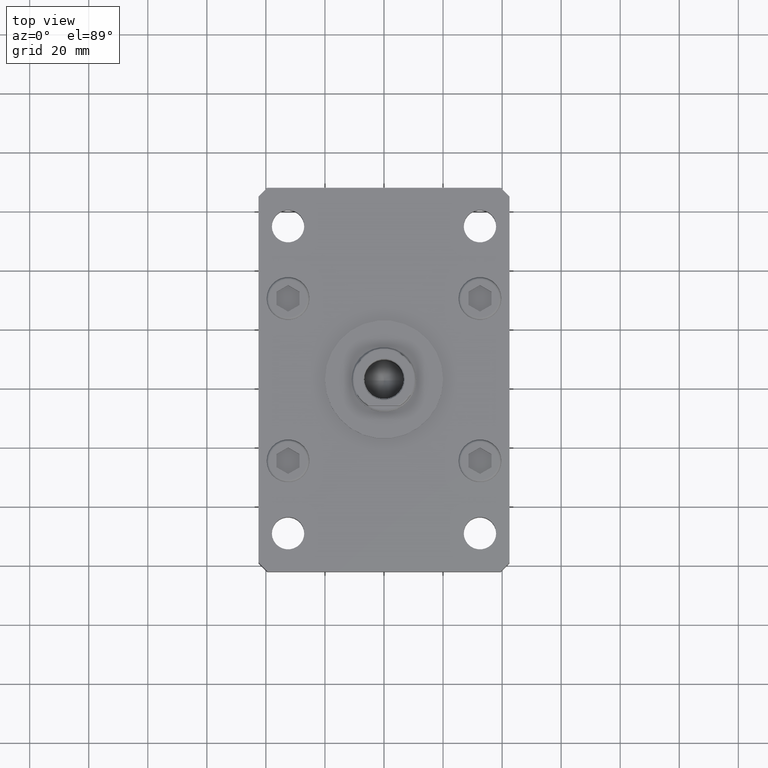
[diagram: clean part render]
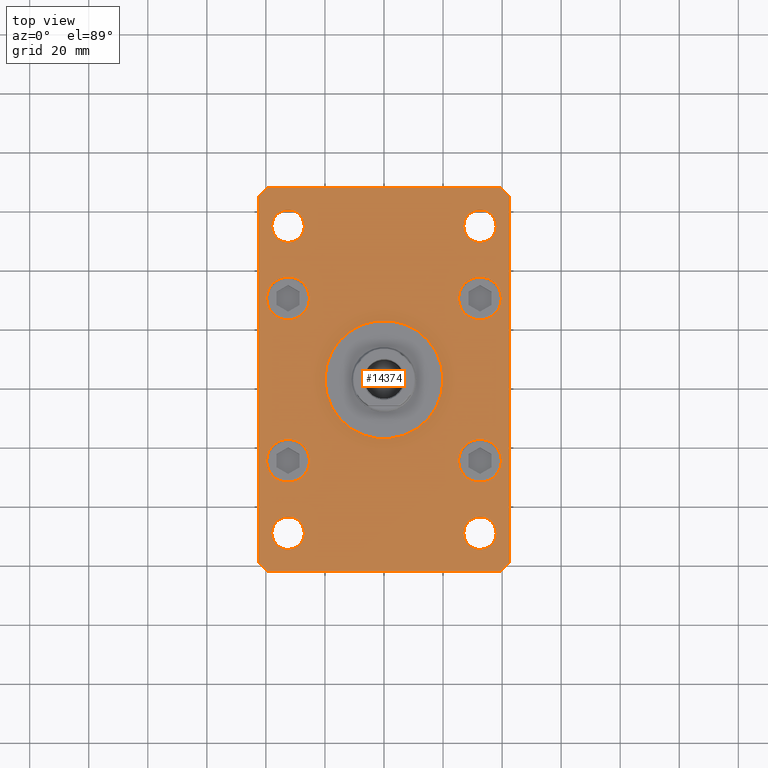
[diagram: same view with one face highlighted and labeled with its STEP entity id]
A machine part, top view. The second image highlights one B-rep face of the part: STEP entity #14374.
In plain terms, the highlighted planar face has unit normal (0, 0, 1).
Its self-contained STEP definition (entity closure, byte-faithful):
#1 = CARTESIAN_POINT ( 'NONE',  ( -25.25000000000000000, -27.50000000000000000, 15.00000000000000000 ) ) ;
#74 = EDGE_CURVE ( 'NONE', #50099, #24078, #24060, .T. ) ;
#400 = DIRECTION ( 'NONE',  ( 1.000000000000000000, 0.000000000000000000, 0.000000000000000000 ) ) ;
#773 = EDGE_CURVE ( 'NONE', #39790, #35642, #27593, .T. ) ;
#943 = DIRECTION ( 'NONE',  ( 0.000000000000000000, 0.000000000000000000, 1.000000000000000000 ) ) ;
#976 = CIRCLE ( 'NONE', #39068, 20.00000000000000000 ) ;
#1141 = DIRECTION ( 'NONE',  ( 0.000000000000000000, 0.000000000000000000, 1.000000000000000000 ) ) ;
#1316 = CARTESIAN_POINT ( 'NONE',  ( -32.49999999999997868, -52.00000000000000711, 15.00000000000000000 ) ) ;
#1597 = DIRECTION ( 'NONE',  ( 1.000000000000000000, 0.000000000000000000, 0.000000000000000000 ) ) ;
#1956 = VECTOR ( 'NONE', #7442, 1000.000000000000000 ) ;
#2084 = VERTEX_POINT ( 'NONE', #18551 ) ;
#2296 = EDGE_CURVE ( 'NONE', #51710, #29341, #46662, .T. ) ;
#2302 = CARTESIAN_POINT ( 'NONE',  ( 0.000000000000000000, 0.000000000000000000, 15.00000000000000000 ) ) ;
#2462 = EDGE_CURVE ( 'NONE', #46837, #9170, #15222, .T. ) ;
#2582 = CIRCLE ( 'NONE', #48449, 5.499999999999994671 ) ;
#2782 = EDGE_CURVE ( 'NONE', #10944, #2084, #13841, .T. ) ;
#2790 = EDGE_CURVE ( 'NONE', #33543, #24824, #40625, .T. ) ;
#3080 = EDGE_CURVE ( 'NONE', #26522, #40787, #27673, .T. ) ;
#3383 = AXIS2_PLACEMENT_3D ( 'NONE', #12279, #4935, #13083 ) ;
#3701 = LINE ( 'NONE', #8049, #11386 ) ;
#3835 = CARTESIAN_POINT ( 'NONE',  ( 20.00000000000000000, 2.449293598294706513E-15, 15.00000000000000000 ) ) ;
#3848 = DIRECTION ( 'NONE',  ( 0.000000000000000000, 0.000000000000000000, 1.000000000000000000 ) ) ;
#4233 = CARTESIAN_POINT ( 'NONE',  ( 39.75000000000000000, -27.50000000000000000, 15.00000000000000000 ) ) ;
#4306 = CIRCLE ( 'NONE', #34648, 5.499999999999998224 ) ;
#4744 = VERTEX_POINT ( 'NONE', #22831 ) ;
#4935 = DIRECTION ( 'NONE',  ( 0.000000000000000000, 0.000000000000000000, 1.000000000000000000 ) ) ;
#4961 = CARTESIAN_POINT ( 'NONE',  ( -39.50000000000003553, 65.00000000000000000, 15.00000000000000000 ) ) ;
#5014 = CARTESIAN_POINT ( 'NONE',  ( -32.50000000000000000, -27.50000000000000000, 15.00000000000000000 ) ) ;
#5171 = VECTOR ( 'NONE', #9793, 1000.000000000000114 ) ;
#5528 = VECTOR ( 'NONE', #24757, 1000.000000000000000 ) ;
#5708 = CARTESIAN_POINT ( 'NONE',  ( -42.50000000000002132, 62.00000000000000711, 15.00000000000000000 ) ) ;
#5821 = DIRECTION ( 'NONE',  ( 0.000000000000000000, 0.000000000000000000, 1.000000000000000000 ) ) ;
#5976 = ORIENTED_EDGE ( 'NONE', *, *, #7588, .F. ) ;
#6183 = DIRECTION ( 'NONE',  ( 1.000000000000000000, 0.000000000000000000, 0.000000000000000000 ) ) ;
#6316 = VECTOR ( 'NONE', #6583, 1000.000000000000000 ) ;
#6583 = DIRECTION ( 'NONE',  ( -1.000000000000000000, -3.513364001978340512E-16, 0.000000000000000000 ) ) ;
#7239 = CARTESIAN_POINT ( 'NONE',  ( 39.50000000000002842, 65.00000000000002842, 15.00000000000000000 ) ) ;
#7442 = DIRECTION ( 'NONE',  ( 1.000000000000000000, 1.405345600791337191E-15, 0.000000000000000000 ) ) ;
#7588 = EDGE_CURVE ( 'NONE', #35642, #39790, #2582, .T. ) ;
#8049 = CARTESIAN_POINT ( 'NONE',  ( 42.50000000000000000, -61.99999999999988631, 15.00000000000000000 ) ) ;
#8198 = PLANE ( 'NONE',  #28737 ) ;
#8332 = ORIENTED_EDGE ( 'NONE', *, *, #44523, .F. ) ;
#8793 = ORIENTED_EDGE ( 'NONE', *, *, #2462, .T. ) ;
#8826 = DIRECTION ( 'NONE',  ( 0.000000000000000000, 0.000000000000000000, 1.000000000000000000 ) ) ;
#9170 = VERTEX_POINT ( 'NONE', #21733 ) ;
#9239 = VERTEX_POINT ( 'NONE', #30413 ) ;
#9414 = ORIENTED_EDGE ( 'NONE', *, *, #2790, .F. ) ;
#9729 = AXIS2_PLACEMENT_3D ( 'NONE', #1316, #18138, #17874 ) ;
#9793 = DIRECTION ( 'NONE',  ( 0.7071067811865459074, 0.7071067811865491270, 0.000000000000000000 ) ) ;
#10060 = LINE ( 'NONE', #14394, #5171 ) ;
#10516 = CARTESIAN_POINT ( 'NONE',  ( 32.50000000000000000, 51.99999999999999289, 15.00000000000000000 ) ) ;
#10584 = CIRCLE ( 'NONE', #40001, 7.249999999999999112 ) ;
#10839 = EDGE_CURVE ( 'NONE', #29341, #51710, #32955, .T. ) ;
#10944 = VERTEX_POINT ( 'NONE', #20487 ) ;
#11194 = VECTOR ( 'NONE', #23601, 1000.000000000000000 ) ;
#11230 = CIRCLE ( 'NONE', #3383, 20.00000000000000000 ) ;
#11386 = VECTOR ( 'NONE', #41104, 1000.000000000000000 ) ;
#12017 = ORIENTED_EDGE ( 'NONE', *, *, #31312, .T. ) ;
#12205 = DIRECTION ( 'NONE',  ( -0.7071067811865417996, 0.7071067811865532349, 0.000000000000000000 ) ) ;
#12256 = FACE_BOUND ( 'NONE', #18081, .T. ) ;
#12279 = CARTESIAN_POINT ( 'NONE',  ( 0.000000000000000000, 0.000000000000000000, 15.00000000000000000 ) ) ;
#12474 = LINE ( 'NONE', #41190, #48647 ) ;
#12523 = FACE_BOUND ( 'NONE', #34710, .T. ) ;
#12532 = CARTESIAN_POINT ( 'NONE',  ( 32.50000000000000000, 27.50000000000000000, 15.00000000000000000 ) ) ;
#12789 = DIRECTION ( 'NONE',  ( 1.000000000000000000, 0.000000000000000000, 0.000000000000000000 ) ) ;
#13022 = ORIENTED_EDGE ( 'NONE', *, *, #36900, .F. ) ;
#13083 = DIRECTION ( 'NONE',  ( 1.000000000000000000, 0.000000000000000000, 0.000000000000000000 ) ) ;
#13348 = CARTESIAN_POINT ( 'NONE',  ( -37.99999999999997868, -52.00000000000000711, 15.00000000000000000 ) ) ;
#13841 = CIRCLE ( 'NONE', #17254, 5.499999999999991118 ) ;
#13941 = DIRECTION ( 'NONE',  ( 1.000000000000000000, 0.000000000000000000, 0.000000000000000000 ) ) ;
#13966 = DIRECTION ( 'NONE',  ( 1.000000000000000000, 0.000000000000000000, 0.000000000000000000 ) ) ;
#14164 = DIRECTION ( 'NONE',  ( 1.000000000000000000, 0.000000000000000000, 0.000000000000000000 ) ) ;
#14374 = ADVANCED_FACE ( 'NONE', ( #48868, #12256, #36921, #28781, #12523, #28252, #52679, #40713, #49653, #20389 ), #8198, .T. ) ;
#14394 = CARTESIAN_POINT ( 'NONE',  ( 39.50000000000001421, -64.99999999999988631, 15.00000000000000000 ) ) ;
#14736 = EDGE_CURVE ( 'NONE', #34001, #17820, #10584, .T. ) ;
#15011 = CIRCLE ( 'NONE', #45281, 7.249999999999999112 ) ;
#15077 = EDGE_CURVE ( 'NONE', #24824, #33543, #20084, .T. ) ;
#15222 = LINE ( 'NONE', #22819, #11194 ) ;
#15231 = ORIENTED_EDGE ( 'NONE', *, *, #74, .F. ) ;
#15249 = EDGE_CURVE ( 'NONE', #9239, #28258, #12474, .T. ) ;
#15574 = CARTESIAN_POINT ( 'NONE',  ( -39.50000000000000000, -65.00000000000000000, 15.00000000000000000 ) ) ;
#16516 = AXIS2_PLACEMENT_3D ( 'NONE', #32947, #8826, #50026 ) ;
#16669 = CARTESIAN_POINT ( 'NONE',  ( 32.49999999999997868, -52.00000000000000711, 15.00000000000000000 ) ) ;
#17161 = ORIENTED_EDGE ( 'NONE', *, *, #3080, .F. ) ;
#17254 = AXIS2_PLACEMENT_3D ( 'NONE', #37930, #42254, #1597 ) ;
#17600 = CIRCLE ( 'NONE', #47900, 7.249999999999999112 ) ;
#17820 = VERTEX_POINT ( 'NONE', #38611 ) ;
#17874 = DIRECTION ( 'NONE',  ( 1.000000000000000000, 0.000000000000000000, 0.000000000000000000 ) ) ;
#18081 = EDGE_LOOP ( 'NONE', ( #9414, #24541 ) ) ;
#18138 = DIRECTION ( 'NONE',  ( 0.000000000000000000, 0.000000000000000000, 1.000000000000000000 ) ) ;
#18551 = CARTESIAN_POINT ( 'NONE',  ( 27.00000000000001421, 51.99999999999999289, 15.00000000000000000 ) ) ;
#18684 = EDGE_CURVE ( 'NONE', #9170, #26680, #35630, .T. ) ;
#18978 = AXIS2_PLACEMENT_3D ( 'NONE', #12532, #33384, #12789 ) ;
#19179 = DIRECTION ( 'NONE',  ( 0.000000000000000000, 0.000000000000000000, 1.000000000000000000 ) ) ;
#20084 = CIRCLE ( 'NONE', #51286, 7.249999999999999112 ) ;
#20127 = DIRECTION ( 'NONE',  ( 1.000000000000000000, 0.000000000000000000, -0.000000000000000000 ) ) ;
#20277 = EDGE_LOOP ( 'NONE', ( #30687, #15231 ) ) ;
#20389 = FACE_BOUND ( 'NONE', #20277, .T. ) ;
#20487 = CARTESIAN_POINT ( 'NONE',  ( 37.99999999999999289, 51.99999999999999289, 15.00000000000000000 ) ) ;
#20717 = EDGE_CURVE ( 'NONE', #35365, #46837, #45356, .T. ) ;
#20983 = VERTEX_POINT ( 'NONE', #34519 ) ;
#21523 = DIRECTION ( 'NONE',  ( 0.000000000000000000, 0.000000000000000000, 1.000000000000000000 ) ) ;
#21654 = ORIENTED_EDGE ( 'NONE', *, *, #10839, .F. ) ;
#21733 = CARTESIAN_POINT ( 'NONE',  ( -42.49999999999999289, -62.00000000000001421, 15.00000000000000000 ) ) ;
#21945 = DIRECTION ( 'NONE',  ( 0.000000000000000000, 0.000000000000000000, 1.000000000000000000 ) ) ;
#22194 = VERTEX_POINT ( 'NONE', #49915 ) ;
#22217 = CARTESIAN_POINT ( 'NONE',  ( -32.50000000000000711, 27.50000000000000000, 15.00000000000000000 ) ) ;
#22819 = CARTESIAN_POINT ( 'NONE',  ( -42.50000000000002132, 62.00000000000000711, 15.00000000000000000 ) ) ;
#22831 = CARTESIAN_POINT ( 'NONE',  ( 39.50000000000001421, -64.99999999999988631, 15.00000000000000000 ) ) ;
#23601 = DIRECTION ( 'NONE',  ( 2.238352872228137677E-16, -1.000000000000000000, 0.000000000000000000 ) ) ;
#24060 = CIRCLE ( 'NONE', #31048, 5.499999999999998224 ) ;
#24078 = VERTEX_POINT ( 'NONE', #32482 ) ;
#24175 = ORIENTED_EDGE ( 'NONE', *, *, #20717, .T. ) ;
#24445 = CARTESIAN_POINT ( 'NONE',  ( 0.000000000000000000, 0.000000000000000000, 15.00000000000000000 ) ) ;
#24541 = ORIENTED_EDGE ( 'NONE', *, *, #15077, .F. ) ;
#24757 = DIRECTION ( 'NONE',  ( -0.7071067811865466846, -0.7071067811865483499, 0.000000000000000000 ) ) ;
#24824 = VERTEX_POINT ( 'NONE', #38219 ) ;
#25055 = AXIS2_PLACEMENT_3D ( 'NONE', #35099, #5821, #13966 ) ;
#25407 = VECTOR ( 'NONE', #43479, 1000.000000000000000 ) ;
#25463 = DIRECTION ( 'NONE',  ( 1.000000000000000000, 0.000000000000000000, 0.000000000000000000 ) ) ;
#25667 = CARTESIAN_POINT ( 'NONE',  ( -39.50000000000000000, -65.00000000000000000, 15.00000000000000000 ) ) ;
#25742 = CARTESIAN_POINT ( 'NONE',  ( 32.49999999999997868, -52.00000000000000711, 15.00000000000000000 ) ) ;
#25908 = AXIS2_PLACEMENT_3D ( 'NONE', #10516, #19179, #6183 ) ;
#26522 = VERTEX_POINT ( 'NONE', #13348 ) ;
#26653 = CARTESIAN_POINT ( 'NONE',  ( -32.50000000000000000, -27.50000000000000000, 15.00000000000000000 ) ) ;
#26680 = VERTEX_POINT ( 'NONE', #25667 ) ;
#27283 = EDGE_CURVE ( 'NONE', #48333, #22194, #11230, .T. ) ;
#27508 = ORIENTED_EDGE ( 'NONE', *, *, #42861, .F. ) ;
#27593 = CIRCLE ( 'NONE', #41421, 5.499999999999994671 ) ;
#27673 = CIRCLE ( 'NONE', #25055, 5.499999999999994671 ) ;
#27715 = EDGE_CURVE ( 'NONE', #24078, #50099, #4306, .T. ) ;
#27804 = CARTESIAN_POINT ( 'NONE',  ( -32.50000000000000711, 27.50000000000000000, 15.00000000000000000 ) ) ;
#28252 = FACE_OUTER_BOUND ( 'NONE', #47372, .T. ) ;
#28258 = VERTEX_POINT ( 'NONE', #7239 ) ;
#28555 = LINE ( 'NONE', #15574, #1956 ) ;
#28737 = AXIS2_PLACEMENT_3D ( 'NONE', #24445, #3848, #20127 ) ;
#28781 = FACE_BOUND ( 'NONE', #46513, .T. ) ;
#29131 = ORIENTED_EDGE ( 'NONE', *, *, #18684, .T. ) ;
#29341 = VERTEX_POINT ( 'NONE', #35123 ) ;
#29765 = VERTEX_POINT ( 'NONE', #1 ) ;
#30154 = ORIENTED_EDGE ( 'NONE', *, *, #2296, .F. ) ;
#30361 = DIRECTION ( 'NONE',  ( 1.000000000000000000, 0.000000000000000000, 0.000000000000000000 ) ) ;
#30413 = CARTESIAN_POINT ( 'NONE',  ( 42.50000000000000000, 62.00000000000000711, 15.00000000000000000 ) ) ;
#30431 = DIRECTION ( 'NONE',  ( 1.000000000000000000, 0.000000000000000000, 0.000000000000000000 ) ) ;
#30499 = EDGE_CURVE ( 'NONE', #2084, #10944, #51012, .T. ) ;
#30687 = ORIENTED_EDGE ( 'NONE', *, *, #27715, .F. ) ;
#31048 = AXIS2_PLACEMENT_3D ( 'NONE', #16669, #41322, #32410 ) ;
#31224 = CARTESIAN_POINT ( 'NONE',  ( -38.00000000000000000, 52.00000000000000000, 15.00000000000000000 ) ) ;
#31312 = EDGE_CURVE ( 'NONE', #4744, #20983, #10060, .T. ) ;
#31949 = EDGE_LOOP ( 'NONE', ( #21654, #30154 ) ) ;
#32086 = ORIENTED_EDGE ( 'NONE', *, *, #46155, .F. ) ;
#32199 = DIRECTION ( 'NONE',  ( 0.000000000000000000, 0.000000000000000000, 1.000000000000000000 ) ) ;
#32303 = CARTESIAN_POINT ( 'NONE',  ( 39.50000000000002842, 65.00000000000002842, 15.00000000000000000 ) ) ;
#32410 = DIRECTION ( 'NONE',  ( 1.000000000000000000, 0.000000000000000000, 0.000000000000000000 ) ) ;
#32482 = CARTESIAN_POINT ( 'NONE',  ( 26.99999999999998579, -52.00000000000000711, 15.00000000000000000 ) ) ;
#32602 = EDGE_LOOP ( 'NONE', ( #13022, #36286 ) ) ;
#32706 = DIRECTION ( 'NONE',  ( 1.000000000000000000, 0.000000000000000000, 0.000000000000000000 ) ) ;
#32717 = DIRECTION ( 'NONE',  ( 1.000000000000000000, 0.000000000000000000, 0.000000000000000000 ) ) ;
#32947 = CARTESIAN_POINT ( 'NONE',  ( 32.50000000000000000, 27.50000000000000000, 15.00000000000000000 ) ) ;
#32955 = CIRCLE ( 'NONE', #16516, 7.249999999999999112 ) ;
#33128 = AXIS2_PLACEMENT_3D ( 'NONE', #46142, #1141, #30431 ) ;
#33384 = DIRECTION ( 'NONE',  ( 0.000000000000000000, 0.000000000000000000, 1.000000000000000000 ) ) ;
#33451 = DIRECTION ( 'NONE',  ( 1.000000000000000000, 0.000000000000000000, 0.000000000000000000 ) ) ;
#33543 = VERTEX_POINT ( 'NONE', #46105 ) ;
#33660 = ORIENTED_EDGE ( 'NONE', *, *, #773, .F. ) ;
#33779 = CARTESIAN_POINT ( 'NONE',  ( -32.50000000000000000, 52.00000000000000000, 15.00000000000000000 ) ) ;
#34001 = VERTEX_POINT ( 'NONE', #4233 ) ;
#34168 = DIRECTION ( 'NONE',  ( 0.000000000000000000, 0.000000000000000000, 1.000000000000000000 ) ) ;
#34519 = CARTESIAN_POINT ( 'NONE',  ( 42.50000000000000000, -61.99999999999988631, 15.00000000000000000 ) ) ;
#34648 = AXIS2_PLACEMENT_3D ( 'NONE', #25742, #34168, #30361 ) ;
#34710 = EDGE_LOOP ( 'NONE', ( #17161, #38437 ) ) ;
#34863 = DIRECTION ( 'NONE',  ( 1.000000000000000000, 0.000000000000000000, 0.000000000000000000 ) ) ;
#35099 = CARTESIAN_POINT ( 'NONE',  ( -32.49999999999997868, -52.00000000000000711, 15.00000000000000000 ) ) ;
#35123 = CARTESIAN_POINT ( 'NONE',  ( 25.25000000000000000, 27.50000000000000000, 15.00000000000000000 ) ) ;
#35365 = VERTEX_POINT ( 'NONE', #39937 ) ;
#35630 = LINE ( 'NONE', #47027, #25407 ) ;
#35642 = VERTEX_POINT ( 'NONE', #53170 ) ;
#36286 = ORIENTED_EDGE ( 'NONE', *, *, #27283, .F. ) ;
#36541 = EDGE_LOOP ( 'NONE', ( #41079, #39681 ) ) ;
#36632 = VERTEX_POINT ( 'NONE', #40835 ) ;
#36650 = EDGE_CURVE ( 'NONE', #20983, #9239, #3701, .T. ) ;
#36900 = EDGE_CURVE ( 'NONE', #22194, #48333, #976, .T. ) ;
#36921 = FACE_BOUND ( 'NONE', #41392, .T. ) ;
#37313 = DIRECTION ( 'NONE',  ( 0.000000000000000000, 0.000000000000000000, 1.000000000000000000 ) ) ;
#37681 = EDGE_CURVE ( 'NONE', #40787, #26522, #43441, .T. ) ;
#37869 = ORIENTED_EDGE ( 'NONE', *, *, #40362, .T. ) ;
#37930 = CARTESIAN_POINT ( 'NONE',  ( 32.50000000000000000, 51.99999999999999289, 15.00000000000000000 ) ) ;
#38219 = CARTESIAN_POINT ( 'NONE',  ( -25.25000000000000711, 27.50000000000000000, 15.00000000000000000 ) ) ;
#38266 = DIRECTION ( 'NONE',  ( 0.000000000000000000, 0.000000000000000000, 1.000000000000000000 ) ) ;
#38437 = ORIENTED_EDGE ( 'NONE', *, *, #37681, .F. ) ;
#38611 = CARTESIAN_POINT ( 'NONE',  ( 25.25000000000000000, -27.50000000000000000, 15.00000000000000000 ) ) ;
#39068 = AXIS2_PLACEMENT_3D ( 'NONE', #2302, #47592, #34863 ) ;
#39186 = ORIENTED_EDGE ( 'NONE', *, *, #40581, .T. ) ;
#39234 = ORIENTED_EDGE ( 'NONE', *, *, #14736, .F. ) ;
#39681 = ORIENTED_EDGE ( 'NONE', *, *, #2782, .F. ) ;
#39682 = ORIENTED_EDGE ( 'NONE', *, *, #36650, .T. ) ;
#39790 = VERTEX_POINT ( 'NONE', #31224 ) ;
#39937 = CARTESIAN_POINT ( 'NONE',  ( -39.50000000000003553, 65.00000000000000000, 15.00000000000000000 ) ) ;
#40001 = AXIS2_PLACEMENT_3D ( 'NONE', #45179, #32199, #32717 ) ;
#40362 = EDGE_CURVE ( 'NONE', #26680, #4744, #28555, .T. ) ;
#40581 = EDGE_CURVE ( 'NONE', #28258, #35365, #52397, .T. ) ;
#40625 = CIRCLE ( 'NONE', #44957, 7.249999999999999112 ) ;
#40713 = FACE_BOUND ( 'NONE', #42853, .T. ) ;
#40787 = VERTEX_POINT ( 'NONE', #49716 ) ;
#40835 = CARTESIAN_POINT ( 'NONE',  ( -39.75000000000000000, -27.50000000000000000, 15.00000000000000000 ) ) ;
#41079 = ORIENTED_EDGE ( 'NONE', *, *, #30499, .F. ) ;
#41104 = DIRECTION ( 'NONE',  ( 0.000000000000000000, 1.000000000000000000, 0.000000000000000000 ) ) ;
#41190 = CARTESIAN_POINT ( 'NONE',  ( 42.50000000000000000, 62.00000000000000711, 15.00000000000000000 ) ) ;
#41322 = DIRECTION ( 'NONE',  ( 0.000000000000000000, 0.000000000000000000, 1.000000000000000000 ) ) ;
#41392 = EDGE_LOOP ( 'NONE', ( #8332, #39234 ) ) ;
#41421 = AXIS2_PLACEMENT_3D ( 'NONE', #33779, #37313, #32706 ) ;
#42254 = DIRECTION ( 'NONE',  ( 0.000000000000000000, 0.000000000000000000, 1.000000000000000000 ) ) ;
#42648 = CIRCLE ( 'NONE', #33128, 7.249999999999999112 ) ;
#42853 = EDGE_LOOP ( 'NONE', ( #27508, #32086 ) ) ;
#42861 = EDGE_CURVE ( 'NONE', #36632, #29765, #15011, .T. ) ;
#43441 = CIRCLE ( 'NONE', #9729, 5.499999999999994671 ) ;
#43479 = DIRECTION ( 'NONE',  ( 0.7071067811865483499, -0.7071067811865466846, 0.000000000000000000 ) ) ;
#44071 = CARTESIAN_POINT ( 'NONE',  ( 39.75000000000000000, 27.50000000000000000, 15.00000000000000000 ) ) ;
#44523 = EDGE_CURVE ( 'NONE', #17820, #34001, #42648, .T. ) ;
#44957 = AXIS2_PLACEMENT_3D ( 'NONE', #22217, #21945, #25463 ) ;
#45179 = CARTESIAN_POINT ( 'NONE',  ( 32.50000000000000000, -27.50000000000000000, 15.00000000000000000 ) ) ;
#45281 = AXIS2_PLACEMENT_3D ( 'NONE', #26653, #51079, #13941 ) ;
#45356 = LINE ( 'NONE', #4961, #5528 ) ;
#45908 = CARTESIAN_POINT ( 'NONE',  ( 37.99999999999997868, -52.00000000000000711, 15.00000000000000000 ) ) ;
#46105 = CARTESIAN_POINT ( 'NONE',  ( -39.75000000000000711, 27.50000000000000000, 15.00000000000000000 ) ) ;
#46142 = CARTESIAN_POINT ( 'NONE',  ( 32.50000000000000000, -27.50000000000000000, 15.00000000000000000 ) ) ;
#46155 = EDGE_CURVE ( 'NONE', #29765, #36632, #17600, .T. ) ;
#46513 = EDGE_LOOP ( 'NONE', ( #33660, #5976 ) ) ;
#46662 = CIRCLE ( 'NONE', #18978, 7.249999999999999112 ) ;
#46837 = VERTEX_POINT ( 'NONE', #5708 ) ;
#47027 = CARTESIAN_POINT ( 'NONE',  ( -42.49999999999999289, -62.00000000000001421, 15.00000000000000000 ) ) ;
#47372 = EDGE_LOOP ( 'NONE', ( #37869, #12017, #39682, #48397, #39186, #24175, #8793, #29131 ) ) ;
#47592 = DIRECTION ( 'NONE',  ( 0.000000000000000000, 0.000000000000000000, 1.000000000000000000 ) ) ;
#47900 = AXIS2_PLACEMENT_3D ( 'NONE', #5014, #943, #400 ) ;
#48333 = VERTEX_POINT ( 'NONE', #3835 ) ;
#48397 = ORIENTED_EDGE ( 'NONE', *, *, #15249, .T. ) ;
#48449 = AXIS2_PLACEMENT_3D ( 'NONE', #51297, #38266, #14164 ) ;
#48647 = VECTOR ( 'NONE', #12205, 1000.000000000000000 ) ;
#48868 = FACE_BOUND ( 'NONE', #32602, .T. ) ;
#49653 = FACE_BOUND ( 'NONE', #31949, .T. ) ;
#49716 = CARTESIAN_POINT ( 'NONE',  ( -26.99999999999998579, -52.00000000000000711, 15.00000000000000000 ) ) ;
#49915 = CARTESIAN_POINT ( 'NONE',  ( -20.00000000000000000, 0.000000000000000000, 15.00000000000000000 ) ) ;
#50026 = DIRECTION ( 'NONE',  ( 1.000000000000000000, 0.000000000000000000, 0.000000000000000000 ) ) ;
#50099 = VERTEX_POINT ( 'NONE', #45908 ) ;
#51012 = CIRCLE ( 'NONE', #25908, 5.499999999999991118 ) ;
#51079 = DIRECTION ( 'NONE',  ( 0.000000000000000000, 0.000000000000000000, 1.000000000000000000 ) ) ;
#51286 = AXIS2_PLACEMENT_3D ( 'NONE', #27804, #21523, #33451 ) ;
#51297 = CARTESIAN_POINT ( 'NONE',  ( -32.50000000000000000, 52.00000000000000000, 15.00000000000000000 ) ) ;
#51710 = VERTEX_POINT ( 'NONE', #44071 ) ;
#52397 = LINE ( 'NONE', #32303, #6316 ) ;
#52679 = FACE_BOUND ( 'NONE', #36541, .T. ) ;
#53170 = CARTESIAN_POINT ( 'NONE',  ( -27.00000000000000711, 52.00000000000000000, 15.00000000000000000 ) ) ;